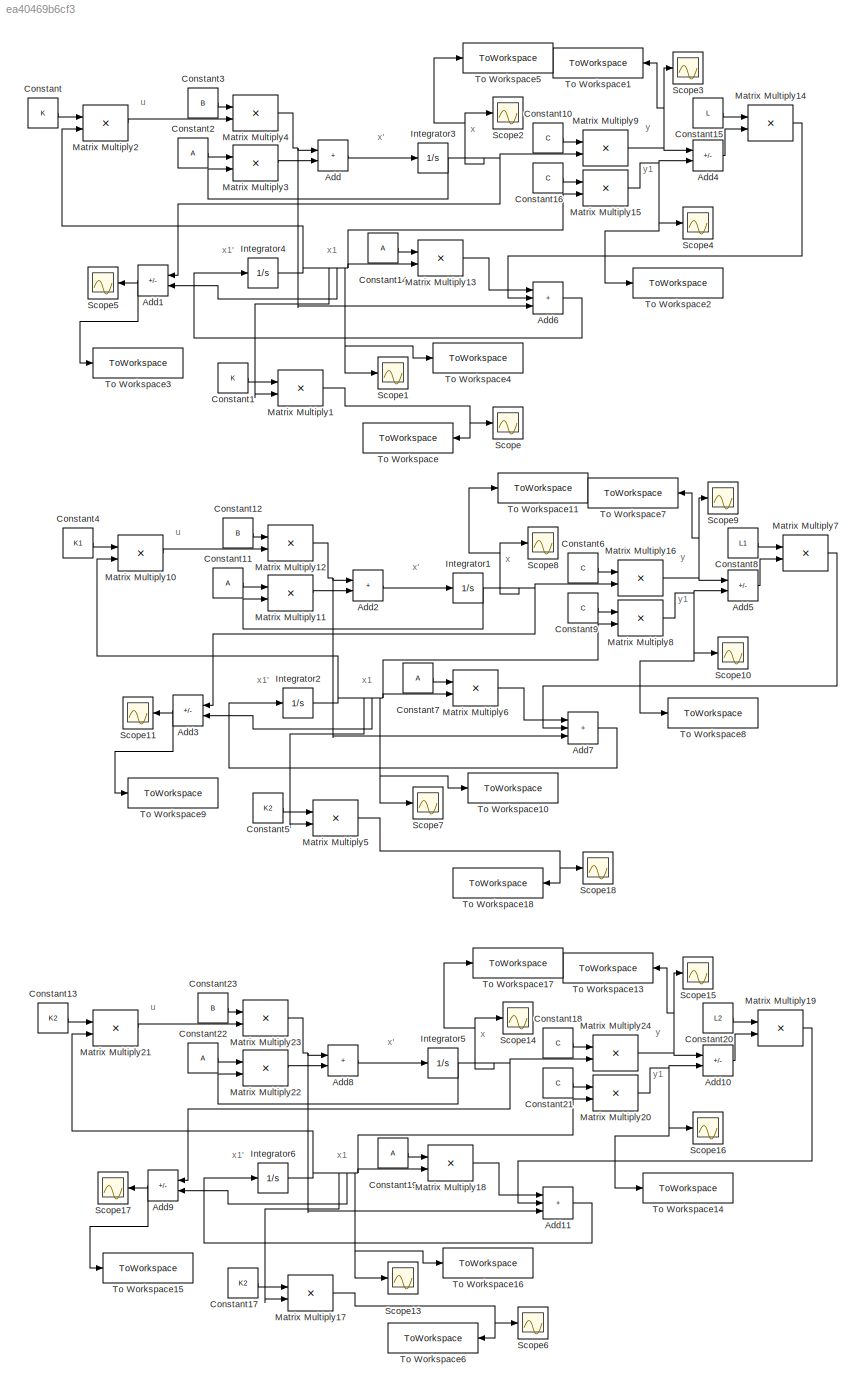
MODEL slx_ea40469b6cf3
KIND model
CONFIG AbsTol = auto
CONFIG EnableMultiTasking = off
CONFIG FixedStep = 0.001
CONFIG MaxStep = auto
CONFIG MinStep = auto
CONFIG RelTol = 1e-3
CONFIG SampleTimeConstraint = Unconstrained
CONFIG SolverName = FixedStepAuto
CONFIG StartTime = 0.0
CONFIG StopTime = 5
BLOCK [Sum] Add
  IconShape = rectangular
BLOCK [Sum] Add1
  IconShape = rectangular
  Inputs = +-
  NameLocation = top
BLOCK [Sum] Add10
  IconShape = rectangular
  Inputs = -+
BLOCK [Sum] Add11
  IconShape = rectangular
  Inputs = +++
BLOCK [Sum] Add2
  IconShape = rectangular
BLOCK [Sum] Add3
  IconShape = rectangular
  Inputs = +-
  NameLocation = top
BLOCK [Sum] Add4
  IconShape = rectangular
  Inputs = -+
BLOCK [Sum] Add5
  IconShape = rectangular
  Inputs = -+
BLOCK [Sum] Add6
  IconShape = rectangular
  Inputs = +++
BLOCK [Sum] Add7
  IconShape = rectangular
  Inputs = +++
BLOCK [Sum] Add8
  IconShape = rectangular
BLOCK [Sum] Add9
  IconShape = rectangular
  Inputs = +-
  NameLocation = top
BLOCK [Constant] Constant
  Value = K
  VectorParams1D = off
BLOCK [Constant] Constant1
  Value = K
  VectorParams1D = off
BLOCK [Constant] Constant10
  Value = C
  VectorParams1D = off
BLOCK [Constant] Constant11
  Value = A
  VectorParams1D = off
BLOCK [Constant] Constant12
  Value = B
  VectorParams1D = off
BLOCK [Constant] Constant13
  Value = K2
  VectorParams1D = off
BLOCK [Constant] Constant14
  Value = A
  VectorParams1D = off
BLOCK [Constant] Constant15
  Value = L
  VectorParams1D = off
BLOCK [Constant] Constant16
  Value = C
  VectorParams1D = off
BLOCK [Constant] Constant17
  Value = K2
  VectorParams1D = off
BLOCK [Constant] Constant18
  Value = C
  VectorParams1D = off
BLOCK [Constant] Constant19
  Value = A
  VectorParams1D = off
BLOCK [Constant] Constant2
  Value = A
  VectorParams1D = off
BLOCK [Constant] Constant20
  Value = L2
  VectorParams1D = off
BLOCK [Constant] Constant21
  Value = C
  VectorParams1D = off
BLOCK [Constant] Constant22
  Value = A
  VectorParams1D = off
BLOCK [Constant] Constant23
  Value = B
  VectorParams1D = off
BLOCK [Constant] Constant3
  Value = B
  VectorParams1D = off
BLOCK [Constant] Constant4
  Value = K1
  VectorParams1D = off
BLOCK [Constant] Constant5
  Value = K2
  VectorParams1D = off
BLOCK [Constant] Constant6
  Value = C
  VectorParams1D = off
BLOCK [Constant] Constant7
  Value = A
  VectorParams1D = off
BLOCK [Constant] Constant8
  Value = L1
  VectorParams1D = off
BLOCK [Constant] Constant9
  Value = C
  VectorParams1D = off
BLOCK [Integrator] Integrator1
  InitialCondition = x0
BLOCK [Integrator] Integrator2
  InitialCondition = x1
BLOCK [Integrator] Integrator3
  InitialCondition = x0
BLOCK [Integrator] Integrator4
  InitialCondition = x1
BLOCK [Integrator] Integrator5
  InitialCondition = x0
BLOCK [Integrator] Integrator6
  InitialCondition = x1
BLOCK [Product] Matrix Multiply1
  Multiplication = Matrix(*)
BLOCK [Product] Matrix Multiply10
  Multiplication = Matrix(*)
BLOCK [Product] Matrix Multiply11
  Multiplication = Matrix(*)
BLOCK [Product] Matrix Multiply12
  Multiplication = Matrix(*)
BLOCK [Product] Matrix Multiply13
  Multiplication = Matrix(*)
BLOCK [Product] Matrix Multiply14
  Multiplication = Matrix(*)
BLOCK [Product] Matrix Multiply15
  Multiplication = Matrix(*)
BLOCK [Product] Matrix Multiply16
  Multiplication = Matrix(*)
BLOCK [Product] Matrix Multiply17
  Multiplication = Matrix(*)
BLOCK [Product] Matrix Multiply18
  Multiplication = Matrix(*)
BLOCK [Product] Matrix Multiply19
  Multiplication = Matrix(*)
BLOCK [Product] Matrix Multiply2
  Multiplication = Matrix(*)
BLOCK [Product] Matrix Multiply20
  Multiplication = Matrix(*)
BLOCK [Product] Matrix Multiply21
  Multiplication = Matrix(*)
BLOCK [Product] Matrix Multiply22
  Multiplication = Matrix(*)
BLOCK [Product] Matrix Multiply23
  Multiplication = Matrix(*)
BLOCK [Product] Matrix Multiply24
  Multiplication = Matrix(*)
BLOCK [Product] Matrix Multiply3
  Multiplication = Matrix(*)
BLOCK [Product] Matrix Multiply4
  Multiplication = Matrix(*)
BLOCK [Product] Matrix Multiply5
  Multiplication = Matrix(*)
BLOCK [Product] Matrix Multiply6
  Multiplication = Matrix(*)
BLOCK [Product] Matrix Multiply7
  Multiplication = Matrix(*)
BLOCK [Product] Matrix Multiply8
  Multiplication = Matrix(*)
BLOCK [Product] Matrix Multiply9
  Multiplication = Matrix(*)
BLOCK [Scope] Scope
  Floating = off
  NumInputPorts = 1
  ScopeSpecificationString = Simulink.scopes.TimeScopeBlockCfg('CurrentConfiguration', extmgr.ConfigurationSet(extmgr.Configuration('Core','General UI',true),extmgr.Configuration('Core','Source UI',true),extmgr.Configuration('Sources','WiredSimulink',true),extmgr.Configuration('Visuals','Time Domain',true),extmgr.Configuration('Tools','Plot Navigation',true),extmgr.Configuration('Tools','Measurements',true)),'Version','2023b'...<+1ch>
BLOCK [Scope] Scope1
  Floating = off
  NumInputPorts = 1
  ScopeSpecificationString = Simulink.scopes.TimeScopeBlockCfg('CurrentConfiguration', extmgr.ConfigurationSet(extmgr.Configuration('Core','General UI',true),extmgr.Configuration('Core','Source UI',true),extmgr.Configuration('Sources','WiredSimulink',true,'DataLoggingVariableName','ScopeData1'),extmgr.Configuration('Visuals','Time Domain',true),extmgr.Configuration('Tools','Plot Navigation',true),extmgr.Configuration('Tools',...<+40ch>
BLOCK [Scope] Scope10
  Floating = off
  NumInputPorts = 1
  ScopeSpecificationString = Simulink.scopes.TimeScopeBlockCfg('CurrentConfiguration', extmgr.ConfigurationSet(extmgr.Configuration('Core','General UI',true),extmgr.Configuration('Core','Source UI',true),extmgr.Configuration('Sources','WiredSimulink',true,'DataLoggingVariableName','ScopeData6'),extmgr.Configuration('Visuals','Time Domain',true),extmgr.Configuration('Tools','Plot Navigation',true),extmgr.Configuration('Tools',...<+40ch>
BLOCK [Scope] Scope11
  Floating = off
  NameLocation = top
  NumInputPorts = 1
  ScopeSpecificationString = Simulink.scopes.TimeScopeBlockCfg('CurrentConfiguration', extmgr.ConfigurationSet(extmgr.Configuration('Core','General UI',true),extmgr.Configuration('Core','Source UI',true),extmgr.Configuration('Sources','WiredSimulink',true,'DataLoggingVariableName','ScopeData7'),extmgr.Configuration('Visuals','Time Domain',true,'SerializedDisplays',{struct('MinYLimReal','-7.12047','MaxYLimReal','3.45054','YLab...<+1392ch>
BLOCK [Scope] Scope13
  Floating = off
  NumInputPorts = 1
  ScopeSpecificationString = Simulink.scopes.TimeScopeBlockCfg('CurrentConfiguration', extmgr.ConfigurationSet(extmgr.Configuration('Core','General UI',true),extmgr.Configuration('Core','Source UI',true),extmgr.Configuration('Sources','WiredSimulink',true,'DataLoggingVariableName','ScopeData13'),extmgr.Configuration('Visuals','Time Domain',true),extmgr.Configuration('Tools','Plot Navigation',true),extmgr.Configuration('Tools'...<+41ch>
BLOCK [Scope] Scope14
  Floating = off
  NumInputPorts = 1
  ScopeSpecificationString = Simulink.scopes.TimeScopeBlockCfg('CurrentConfiguration', extmgr.ConfigurationSet(extmgr.Configuration('Core','General UI',true),extmgr.Configuration('Core','Source UI',true),extmgr.Configuration('Sources','WiredSimulink',true,'DataLoggingVariableName','ScopeData14'),extmgr.Configuration('Visuals','Time Domain',true),extmgr.Configuration('Tools','Plot Navigation',true),extmgr.Configuration('Tools'...<+41ch>
BLOCK [Scope] Scope15
  Floating = off
  NumInputPorts = 1
  ScopeSpecificationString = Simulink.scopes.TimeScopeBlockCfg('CurrentConfiguration', extmgr.ConfigurationSet(extmgr.Configuration('Core','General UI',true),extmgr.Configuration('Core','Source UI',true),extmgr.Configuration('Sources','WiredSimulink',true,'DataLoggingVariableName','ScopeData15'),extmgr.Configuration('Visuals','Time Domain',true),extmgr.Configuration('Tools','Plot Navigation',true),extmgr.Configuration('Tools'...<+41ch>
BLOCK [Scope] Scope16
  Floating = off
  NumInputPorts = 1
  ScopeSpecificationString = Simulink.scopes.TimeScopeBlockCfg('CurrentConfiguration', extmgr.ConfigurationSet(extmgr.Configuration('Core','General UI',true),extmgr.Configuration('Core','Source UI',true),extmgr.Configuration('Sources','WiredSimulink',true,'DataLoggingVariableName','ScopeData16'),extmgr.Configuration('Visuals','Time Domain',true),extmgr.Configuration('Tools','Plot Navigation',true),extmgr.Configuration('Tools'...<+41ch>
BLOCK [Scope] Scope17
  Floating = off
  NameLocation = top
  NumInputPorts = 1
  ScopeSpecificationString = Simulink.scopes.TimeScopeBlockCfg('CurrentConfiguration', extmgr.ConfigurationSet(extmgr.Configuration('Core','General UI',true),extmgr.Configuration('Core','Source UI',true),extmgr.Configuration('Sources','WiredSimulink',true,'DataLoggingVariableName','ScopeData17'),extmgr.Configuration('Visuals','Time Domain',true,'SerializedDisplays',{struct('MinYLimReal','-7.01816','MaxYLimReal','3.16347','YLa...<+1393ch>
BLOCK [Scope] Scope18
  Floating = off
  NumInputPorts = 1
  ScopeSpecificationString = Simulink.scopes.TimeScopeBlockCfg('CurrentConfiguration', extmgr.ConfigurationSet(extmgr.Configuration('Core','General UI',true),extmgr.Configuration('Core','Source UI',true),extmgr.Configuration('Sources','WiredSimulink',true,'DataLoggingVariableName','ScopeData18'),extmgr.Configuration('Visuals','Time Domain',true),extmgr.Configuration('Tools','Plot Navigation',true),extmgr.Configuration('Tools'...<+41ch>
BLOCK [Scope] Scope2
  Floating = off
  NumInputPorts = 1
  ScopeSpecificationString = Simulink.scopes.TimeScopeBlockCfg('CurrentConfiguration', extmgr.ConfigurationSet(extmgr.Configuration('Core','General UI',true),extmgr.Configuration('Core','Source UI',true),extmgr.Configuration('Sources','WiredSimulink',true,'DataLoggingVariableName','ScopeData2'),extmgr.Configuration('Visuals','Time Domain',true),extmgr.Configuration('Tools','Plot Navigation',true),extmgr.Configuration('Tools',...<+40ch>
BLOCK [Scope] Scope3
  Floating = off
  NumInputPorts = 1
  ScopeSpecificationString = Simulink.scopes.TimeScopeBlockCfg('CurrentConfiguration', extmgr.ConfigurationSet(extmgr.Configuration('Core','General UI',true),extmgr.Configuration('Core','Source UI',true),extmgr.Configuration('Sources','WiredSimulink',true,'DataLoggingVariableName','ScopeData3'),extmgr.Configuration('Visuals','Time Domain',true),extmgr.Configuration('Tools','Plot Navigation',true),extmgr.Configuration('Tools',...<+40ch>
BLOCK [Scope] Scope4
  Floating = off
  NumInputPorts = 1
  ScopeSpecificationString = Simulink.scopes.TimeScopeBlockCfg('CurrentConfiguration', extmgr.ConfigurationSet(extmgr.Configuration('Core','General UI',true),extmgr.Configuration('Core','Source UI',true),extmgr.Configuration('Sources','WiredSimulink',true,'DataLoggingVariableName','ScopeData4'),extmgr.Configuration('Visuals','Time Domain',true),extmgr.Configuration('Tools','Plot Navigation',true),extmgr.Configuration('Tools',...<+40ch>
BLOCK [Scope] Scope5
  Floating = off
  NameLocation = top
  NumInputPorts = 1
  ScopeSpecificationString = Simulink.scopes.TimeScopeBlockCfg('CurrentConfiguration', extmgr.ConfigurationSet(extmgr.Configuration('Core','General UI',true),extmgr.Configuration('Core','Source UI',true),extmgr.Configuration('Sources','WiredSimulink',true,'DataLoggingVariableName','ScopeData5'),extmgr.Configuration('Visuals','Time Domain',true,'SerializedDisplays',{struct('MinYLimReal','-7.41862','MaxYLimReal','3.41958','YLab...<+1392ch>
BLOCK [Scope] Scope6
  Floating = off
  NumInputPorts = 1
  ScopeSpecificationString = Simulink.scopes.TimeScopeBlockCfg('CurrentConfiguration', extmgr.ConfigurationSet(extmgr.Configuration('Core','General UI',true),extmgr.Configuration('Core','Source UI',true),extmgr.Configuration('Sources','WiredSimulink',true,'DataLoggingVariableName','ScopeData8'),extmgr.Configuration('Visuals','Time Domain',true),extmgr.Configuration('Tools','Plot Navigation',true),extmgr.Configuration('Tools',...<+40ch>
BLOCK [Scope] Scope7
  Floating = off
  NumInputPorts = 1
  ScopeSpecificationString = Simulink.scopes.TimeScopeBlockCfg('CurrentConfiguration', extmgr.ConfigurationSet(extmgr.Configuration('Core','General UI',true),extmgr.Configuration('Core','Source UI',true),extmgr.Configuration('Sources','WiredSimulink',true,'DataLoggingVariableName','ScopeData9'),extmgr.Configuration('Visuals','Time Domain',true),extmgr.Configuration('Tools','Plot Navigation',true),extmgr.Configuration('Tools',...<+40ch>
BLOCK [Scope] Scope8
  Floating = off
  NumInputPorts = 1
  ScopeSpecificationString = Simulink.scopes.TimeScopeBlockCfg('CurrentConfiguration', extmgr.ConfigurationSet(extmgr.Configuration('Core','General UI',true),extmgr.Configuration('Core','Source UI',true),extmgr.Configuration('Sources','WiredSimulink',true,'DataLoggingVariableName','ScopeData10'),extmgr.Configuration('Visuals','Time Domain',true),extmgr.Configuration('Tools','Plot Navigation',true),extmgr.Configuration('Tools'...<+41ch>
BLOCK [Scope] Scope9
  Floating = off
  NumInputPorts = 1
  ScopeSpecificationString = Simulink.scopes.TimeScopeBlockCfg('CurrentConfiguration', extmgr.ConfigurationSet(extmgr.Configuration('Core','General UI',true),extmgr.Configuration('Core','Source UI',true),extmgr.Configuration('Sources','WiredSimulink',true,'DataLoggingVariableName','ScopeData11'),extmgr.Configuration('Visuals','Time Domain',true),extmgr.Configuration('Tools','Plot Navigation',true),extmgr.Configuration('Tools'...<+41ch>
BLOCK [ToWorkspace] To Workspace
  FixptAsFi = on
  MaxDataPoints = inf
  NameLocation = top
  SampleTime = -1
  SaveFormat = Timeseries
  VariableName = u
BLOCK [ToWorkspace] To Workspace1
  FixptAsFi = on
  MaxDataPoints = inf
  NameLocation = top
  SampleTime = -1
  SaveFormat = Timeseries
  VariableName = y
BLOCK [ToWorkspace] To Workspace10
  FixptAsFi = on
  MaxDataPoints = inf
  SampleTime = -1
  SaveFormat = Timeseries
  VariableName = xx1
BLOCK [ToWorkspace] To Workspace11
  FixptAsFi = on
  MaxDataPoints = inf
  SampleTime = -1
  SaveFormat = Timeseries
  VariableName = x1
BLOCK [ToWorkspace] To Workspace13
  FixptAsFi = on
  MaxDataPoints = inf
  NameLocation = top
  SampleTime = -1
  SaveFormat = Timeseries
  VariableName = y2
BLOCK [ToWorkspace] To Workspace14
  FixptAsFi = on
  MaxDataPoints = inf
  SampleTime = -1
  SaveFormat = Timeseries
  VariableName = yy2
BLOCK [ToWorkspace] To Workspace15
  FixptAsFi = on
  MaxDataPoints = inf
  SampleTime = -1
  SaveFormat = Timeseries
  VariableName = e2
BLOCK [ToWorkspace] To Workspace16
  FixptAsFi = on
  MaxDataPoints = inf
  SampleTime = -1
  SaveFormat = Timeseries
  VariableName = xx2
BLOCK [ToWorkspace] To Workspace17
  FixptAsFi = on
  MaxDataPoints = inf
  SampleTime = -1
  SaveFormat = Timeseries
  VariableName = x2
BLOCK [ToWorkspace] To Workspace18
  FixptAsFi = on
  MaxDataPoints = inf
  NameLocation = top
  SampleTime = -1
  SaveFormat = Timeseries
  VariableName = u1
BLOCK [ToWorkspace] To Workspace2
  FixptAsFi = on
  MaxDataPoints = inf
  SampleTime = -1
  SaveFormat = Timeseries
  VariableName = yy
BLOCK [ToWorkspace] To Workspace3
  FixptAsFi = on
  MaxDataPoints = inf
  SampleTime = -1
  SaveFormat = Timeseries
  VariableName = e
BLOCK [ToWorkspace] To Workspace4
  FixptAsFi = on
  MaxDataPoints = inf
  SampleTime = -1
  SaveFormat = Timeseries
  VariableName = xx
BLOCK [ToWorkspace] To Workspace5
  FixptAsFi = on
  MaxDataPoints = inf
  SampleTime = -1
  SaveFormat = Timeseries
  VariableName = x
BLOCK [ToWorkspace] To Workspace6
  FixptAsFi = on
  MaxDataPoints = inf
  NameLocation = top
  SampleTime = -1
  SaveFormat = Timeseries
  VariableName = u2
BLOCK [ToWorkspace] To Workspace7
  FixptAsFi = on
  MaxDataPoints = inf
  NameLocation = top
  SampleTime = -1
  SaveFormat = Timeseries
  VariableName = y1
BLOCK [ToWorkspace] To Workspace8
  FixptAsFi = on
  MaxDataPoints = inf
  SampleTime = -1
  SaveFormat = Timeseries
  VariableName = yy1
BLOCK [ToWorkspace] To Workspace9
  FixptAsFi = on
  MaxDataPoints = inf
  SampleTime = -1
  SaveFormat = Timeseries
  VariableName = e1
ANNOTATION (root): u
ANNOTATION (root): x
ANNOTATION (root): x'
ANNOTATION (root): x1
ANNOTATION (root): x1'
ANNOTATION (root): y
ANNOTATION (root): y1
LINE Add10:1 -> Matrix Multiply19:2
LINE Add11:1 -> Integrator6:1
NET Add1:1 -> Scope5:1, To Workspace3:1
LINE Add2:1 -> Integrator1:1
NET Add3:1 -> Scope11:1, To Workspace9:1
LINE Add4:1 -> Matrix Multiply14:2
LINE Add5:1 -> Matrix Multiply7:2
LINE Add6:1 -> Integrator4:1
LINE Add7:1 -> Integrator2:1
LINE Add8:1 -> Integrator5:1
NET Add9:1 -> Scope17:1, To Workspace15:1
LINE Add:1 -> Integrator3:1
LINE Constant10:1 -> Matrix Multiply9:1
LINE Constant11:1 -> Matrix Multiply11:1
LINE Constant12:1 -> Matrix Multiply12:1
LINE Constant13:1 -> Matrix Multiply21:1
LINE Constant14:1 -> Matrix Multiply13:1
LINE Constant15:1 -> Matrix Multiply14:1
LINE Constant16:1 -> Matrix Multiply15:1
LINE Constant17:1 -> Matrix Multiply17:1
LINE Constant18:1 -> Matrix Multiply24:1
LINE Constant19:1 -> Matrix Multiply18:1
LINE Constant1:1 -> Matrix Multiply1:1
LINE Constant20:1 -> Matrix Multiply19:1
LINE Constant21:1 -> Matrix Multiply20:1
LINE Constant22:1 -> Matrix Multiply22:1
LINE Constant23:1 -> Matrix Multiply23:1
LINE Constant2:1 -> Matrix Multiply3:1
LINE Constant3:1 -> Matrix Multiply4:1
LINE Constant4:1 -> Matrix Multiply10:1
LINE Constant5:1 -> Matrix Multiply5:1
LINE Constant6:1 -> Matrix Multiply16:1
LINE Constant7:1 -> Matrix Multiply6:1
LINE Constant8:1 -> Matrix Multiply7:1
LINE Constant9:1 -> Matrix Multiply8:1
LINE Constant:1 -> Matrix Multiply2:1
NET Integrator1:1 -> Add3:1, Matrix Multiply11:2, Matrix Multiply16:2, Scope8:1, To Workspace11:1
NET Integrator2:1 -> Add3:2, Matrix Multiply10:2, Matrix Multiply5:2, Matrix Multiply6:2, Matrix Multiply8:2, Scope7:1, To Workspace10:1
NET Integrator3:1 -> Add1:1, Matrix Multiply3:2, Matrix Multiply9:2, Scope2:1, To Workspace5:1
NET Integrator4:1 -> Add1:2, Matrix Multiply13:2, Matrix Multiply15:2, Matrix Multiply1:2, Matrix Multiply2:2, Scope1:1, To Workspace4:1
NET Integrator5:1 -> Add9:1, Matrix Multiply22:2, Matrix Multiply24:2, Scope14:1, To Workspace17:1
NET Integrator6:1 -> Add9:2, Matrix Multiply17:2, Matrix Multiply18:2, Matrix Multiply20:2, Matrix Multiply21:2, Scope13:1, To Workspace16:1
LINE Matrix Multiply10:1 -> Matrix Multiply12:2
LINE Matrix Multiply11:1 -> Add2:2
NET Matrix Multiply12:1 -> Add2:1, Add7:3
LINE Matrix Multiply13:1 -> Add6:1
LINE Matrix Multiply14:1 -> Add6:2
NET Matrix Multiply15:1 -> Add4:2, Scope4:1, To Workspace2:1
NET Matrix Multiply16:1 -> Add5:1, Scope9:1, To Workspace7:1
NET Matrix Multiply17:1 -> Scope6:1, To Workspace6:1
LINE Matrix Multiply18:1 -> Add11:1
LINE Matrix Multiply19:1 -> Add11:2
NET Matrix Multiply1:1 -> Scope:1, To Workspace:1
NET Matrix Multiply20:1 -> Add10:2, Scope16:1, To Workspace14:1
LINE Matrix Multiply21:1 -> Matrix Multiply23:2
LINE Matrix Multiply22:1 -> Add8:2
NET Matrix Multiply23:1 -> Add11:3, Add8:1
NET Matrix Multiply24:1 -> Add10:1, Scope15:1, To Workspace13:1
LINE Matrix Multiply2:1 -> Matrix Multiply4:2
LINE Matrix Multiply3:1 -> Add:2
NET Matrix Multiply4:1 -> Add6:3, Add:1
NET Matrix Multiply5:1 -> Scope18:1, To Workspace18:1
LINE Matrix Multiply6:1 -> Add7:1
LINE Matrix Multiply7:1 -> Add7:2
NET Matrix Multiply8:1 -> Add5:2, Scope10:1, To Workspace8:1
NET Matrix Multiply9:1 -> Add4:1, Scope3:1, To Workspace1:1
note: NET lines group one-source signal fan-out (src -> all destinations, sorted); 1:1 wires keep LINE
